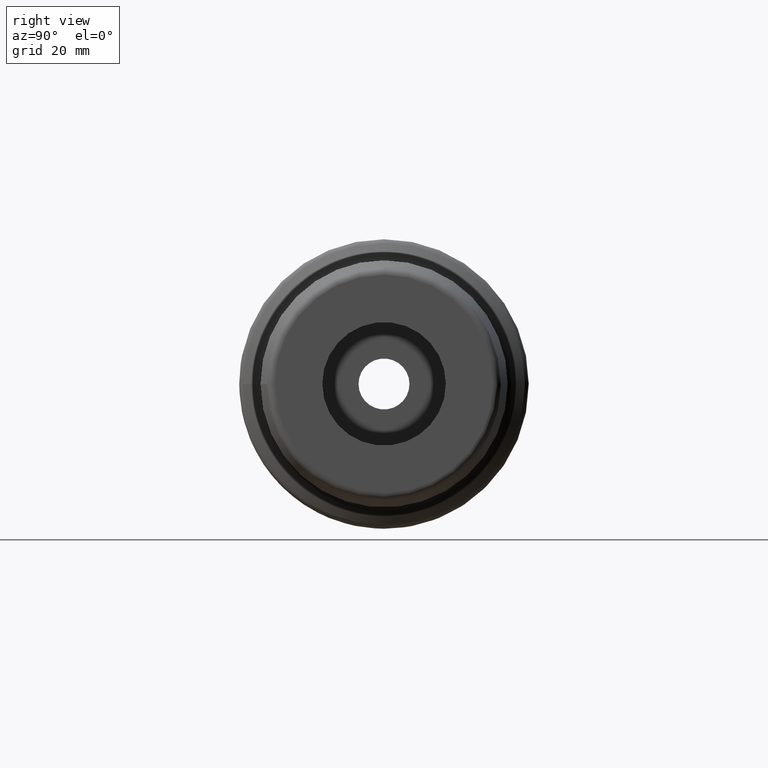
[diagram: clean part render]
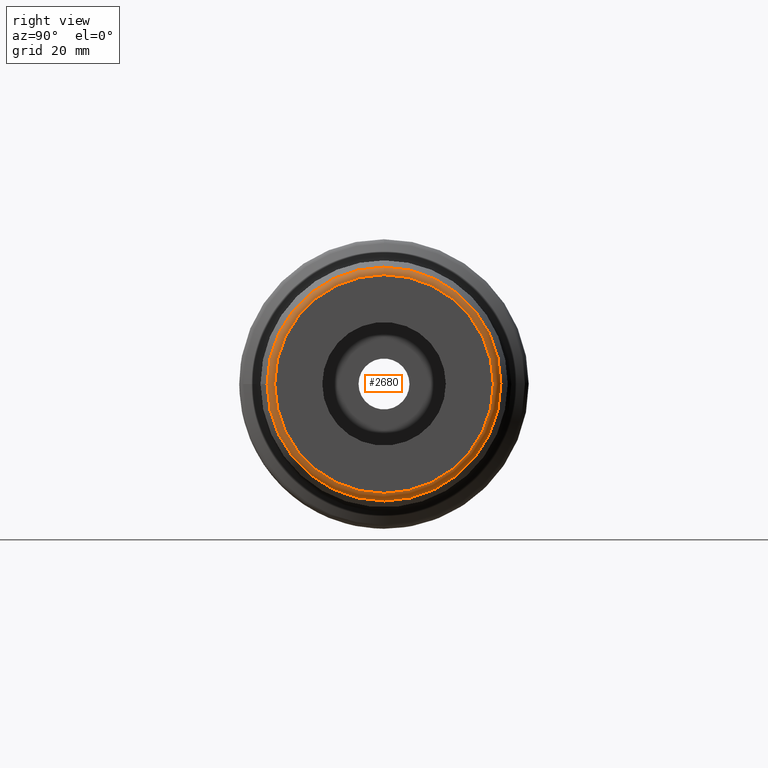
[diagram: same view with one face highlighted and labeled with its STEP entity id]
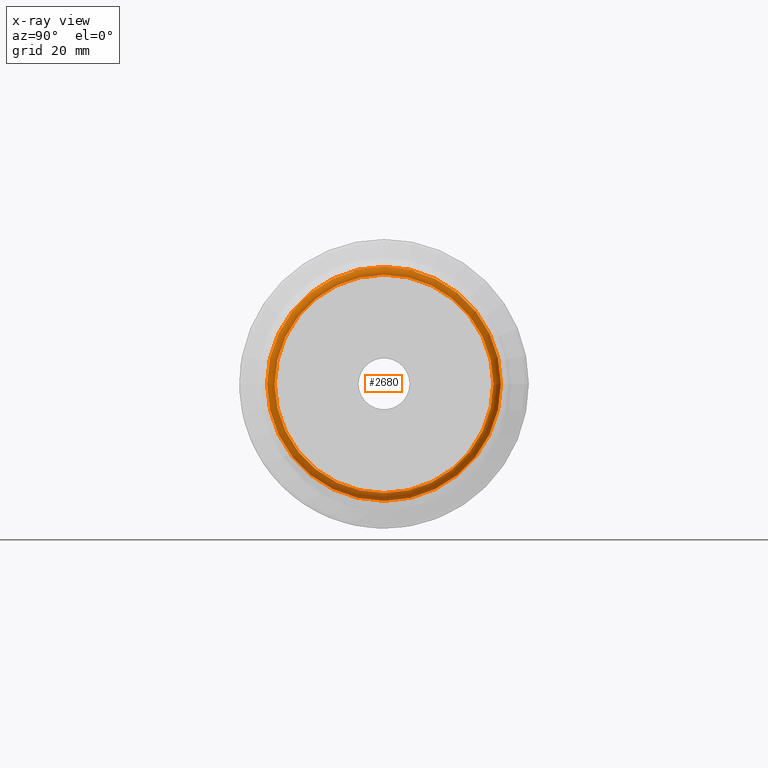
[diagram: x-ray of the same camera — body ghosted, the highlighted face saturated]
A machine part, right view. The second image highlights one B-rep face of the part: STEP entity #2680.
The next image is the same camera in x-ray: the body ghosted, the highlighted face saturated — about 0% of this face is hidden behind the body in this view.
In plain terms, the highlighted toroidal blend (fillet) surface has major radius 28.3218 mm and minor (blend) radius 2 mm.
Its self-contained STEP definition (entity closure, byte-faithful):
#490=FACE_OUTER_BOUND('',#633,.T.);
#633=EDGE_LOOP('',(#1973,#1974,#1975,#1976,#1977,#1978,#1979));
#842=CIRCLE('',#2927,30.2914162436699);
#843=CIRCLE('',#2928,30.2914162436699);
#844=CIRCLE('',#2929,30.2914162436699);
#853=CIRCLE('',#2942,28.3218007376454);
#854=CIRCLE('',#2943,2.);
#855=CIRCLE('',#2944,28.3218007376454);
#1073=VERTEX_POINT('',#4477);
#1074=VERTEX_POINT('',#4478);
#1075=VERTEX_POINT('',#4480);
#1082=VERTEX_POINT('',#4503);
#1083=VERTEX_POINT('',#4504);
#1406=EDGE_CURVE('',#1073,#1074,#842,.T.);
#1407=EDGE_CURVE('',#1075,#1073,#843,.T.);
#1409=EDGE_CURVE('',#1074,#1075,#844,.T.);
#1419=EDGE_CURVE('',#1082,#1083,#853,.T.);
#1420=EDGE_CURVE('',#1083,#1074,#854,.T.);
#1421=EDGE_CURVE('',#1083,#1082,#855,.T.);
#1973=ORIENTED_EDGE('',*,*,#1419,.T.);
#1974=ORIENTED_EDGE('',*,*,#1420,.T.);
#1975=ORIENTED_EDGE('',*,*,#1409,.T.);
#1976=ORIENTED_EDGE('',*,*,#1407,.T.);
#1977=ORIENTED_EDGE('',*,*,#1406,.T.);
#1978=ORIENTED_EDGE('',*,*,#1420,.F.);
#1979=ORIENTED_EDGE('',*,*,#1421,.T.);
#2624=TOROIDAL_SURFACE('',#2941,28.3218007376454,2.);
#2680=ADVANCED_FACE('',(#490),#2624,.T.);
#2927=AXIS2_PLACEMENT_3D('',#4479,#3444,#3445);
#2928=AXIS2_PLACEMENT_3D('',#4481,#3446,#3447);
#2929=AXIS2_PLACEMENT_3D('',#4483,#3449,#3450);
#2941=AXIS2_PLACEMENT_3D('',#4502,#3474,#3475);
#2942=AXIS2_PLACEMENT_3D('',#4505,#3476,#3477);
#2943=AXIS2_PLACEMENT_3D('',#4506,#3478,#3479);
#2944=AXIS2_PLACEMENT_3D('',#4507,#3480,#3481);
#3444=DIRECTION('center_axis',(1.,0.,0.));
#3445=DIRECTION('ref_axis',(0.,-1.,3.06161699786839E-17));
#3446=DIRECTION('center_axis',(1.,0.,0.));
#3447=DIRECTION('ref_axis',(0.,-1.,3.06161699786839E-17));
#3449=DIRECTION('center_axis',(1.,0.,0.));
#3450=DIRECTION('ref_axis',(0.,-1.,3.06161699786839E-17));
#3474=DIRECTION('center_axis',(1.,0.,0.));
#3475=DIRECTION('ref_axis',(0.,0.,-1.));
#3476=DIRECTION('center_axis',(-1.,0.,0.));
#3477=DIRECTION('ref_axis',(0.,-1.,1.83697019872103E-16));
#3478=DIRECTION('center_axis',(0.,-1.,-1.22464679914735E-16));
#3479=DIRECTION('ref_axis',(0.,-1.22464679914735E-16,1.));
#3480=DIRECTION('center_axis',(-1.,0.,0.));
#3481=DIRECTION('ref_axis',(0.,-1.,1.83697019872103E-16));
#4477=CARTESIAN_POINT('',(123.347296355334,30.2914162436699,-1.85481429722252E-15));
#4478=CARTESIAN_POINT('',(123.347296355334,-3.70962859444504E-15,30.2914162436699));
#4479=CARTESIAN_POINT('Origin',(123.347296355334,0.,-4.6370357430563E-15));
#4480=CARTESIAN_POINT('',(123.347296355334,-30.2914162436699,-3.70962859444504E-15));
#4481=CARTESIAN_POINT('Origin',(123.347296355334,0.,-4.6370357430563E-15));
#4483=CARTESIAN_POINT('Origin',(123.347296355334,0.,-4.6370357430563E-15));
#4502=CARTESIAN_POINT('Origin',(123.,0.,0.));
#4503=CARTESIAN_POINT('',(125.,28.3218007376454,-8.67105065486166E-15));
#4504=CARTESIAN_POINT('',(125.,-3.46842026194466E-15,28.3218007376454));
#4505=CARTESIAN_POINT('Origin',(125.,0.,0.));
#4506=CARTESIAN_POINT('Origin',(123.,-3.46842026194466E-15,28.3218007376454));
#4507=CARTESIAN_POINT('Origin',(125.,0.,0.));